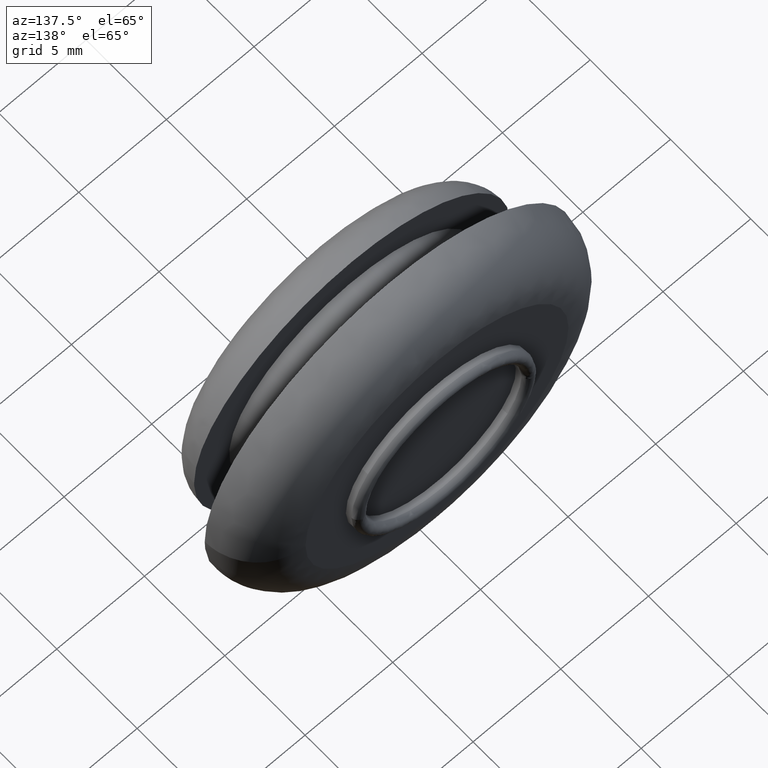
[diagram: clean part render]
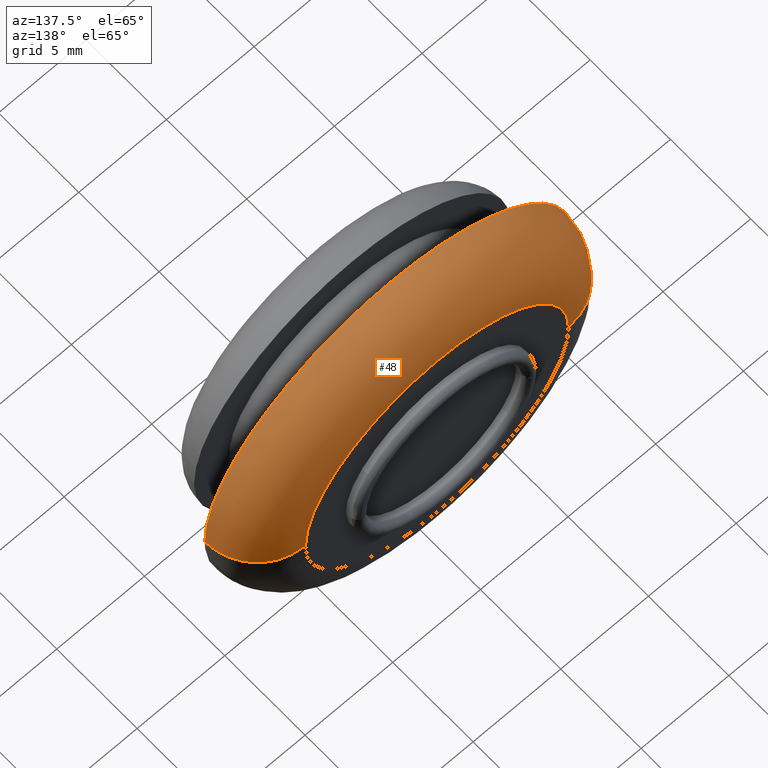
[diagram: same view with one face highlighted and labeled with its STEP entity id]
A machine part, auxiliary view. The second image highlights one B-rep face of the part: STEP entity #48.
In plain terms, the highlighted face is a freeform B-spline surface patch.
Its self-contained STEP definition (entity closure, byte-faithful):
#48=ADVANCED_FACE('',(#145),#144,.T.);
#144=( BOUNDED_SURFACE() B_SPLINE_SURFACE( 2,2,((#350,#351,#352,#353,#354),(#355,#356,#357,#358,#359),(#360,#361,#362,#363,#364),(#365,#366,#367,#368,#369),(#370,#371,#372,#373,#374)), .UNSPECIFIED.,.F.,.F.,.F.) B_SPLINE_SURFACE_WITH_KNOTS((3,2,3),(3,2,3),(-1.57079679760E+000,-1.04711989377E+000,2.32972274600E-004),(0.00000000000E+000,1.57079632679E+000,3.14159265359E+000), .UNSPECIFIED. ) GEOMETRIC_REPRESENTATION_ITEM() RATIONAL_B_SPLINE_SURFACE(((9.32993286230E-001,6.59725879495E-001,9.32993286230E-001,6.59725879495E-001,9.32993286230E-001),(9.32993225988E-001,6.59725836898E-001,9.32993225988E-001,6.59725836898E-001,9.32993225988E-001),(1.00000000000E+000,7.07106781187E-001,1.00000000000E+000,7.07106781187E-001,1.00000000000E+000),(8.65986572461E-001,6.12344977803E-001,8.65986572461E-001,6.12344977803E-001,8.65986572461E-001),(1.00000000000E+000,7.07106781187E-001,1.00000000000E+000,7.07106781187E-001,1.00000000000E+000))) REPRESENTATION_ITEM('') SURFACE() );
#145=FACE_OUTER_BOUND('',#375,.T.);
#350=CARTESIAN_POINT('',(-7.49999855439E+000,7.30000000000E+000,2.89862901081E-014));
#351=CARTESIAN_POINT('',(-7.49999855439E+000,7.30000000000E+000,7.49999855439E+000));
#352=CARTESIAN_POINT('',(-1.11662089636E-012,7.30000000000E+000,7.49999855439E+000));
#353=CARTESIAN_POINT('',(7.49999855439E+000,7.30000000000E+000,7.49999855439E+000));
#354=CARTESIAN_POINT('',(7.49999855439E+000,7.30000000000E+000,2.71493809314E-014));
#355=CARTESIAN_POINT('',(-8.30397175717E+000,7.30000038741E+000,2.90847546404E-014));
#356=CARTESIAN_POINT('',(-8.30397175717E+000,7.30000038741E+000,8.30397175716E+000));
#357=CARTESIAN_POINT('',(-1.11652255357E-012,7.30000038741E+000,8.30397175716E+000));
#358=CARTESIAN_POINT('',(8.30397175716E+000,7.30000038741E+000,8.30397175716E+000));
#359=CARTESIAN_POINT('',(8.30397175716E+000,7.30000038741E+000,2.70509353252E-014));
#360=CARTESIAN_POINT('',(-9.00020175539E+000,6.89795971738E+000,1.93496271287E-014));
#361=CARTESIAN_POINT('',(-9.00020175539E+000,6.89795971738E+000,9.00020175539E+000));
#362=CARTESIAN_POINT('',(-9.99916003845E-013,6.89795971738E+000,9.00020175539E+000));
#363=CARTESIAN_POINT('',(9.00020175538E+000,6.89795971738E+000,9.00020175539E+000));
#364=CARTESIAN_POINT('',(9.00020175538E+000,6.89795971738E+000,1.71452862776E-014));
#365=CARTESIAN_POINT('',(-1.05004035108E+001,6.03166248736E+000,-1.62714120825E-015));
#366=CARTESIAN_POINT('',(-1.05004035108E+001,6.03166248736E+000,1.05004035108E+001));
#367=CARTESIAN_POINT('',(-7.48658012905E-013,6.03166248736E+000,1.05004035108E+001));
#368=CARTESIAN_POINT('',(1.05004035108E+001,6.03166248737E+000,1.05004035108E+001));
#369=CARTESIAN_POINT('',(1.05004035108E+001,6.03166248737E+000,-4.19891337965E-015));
#370=CARTESIAN_POINT('',(-1.04999999186E+001,4.29930108318E+000,-4.39424659217E-014));
#371=CARTESIAN_POINT('',(-1.04999999186E+001,4.29930108318E+000,1.04999999186E+001));
#372=CARTESIAN_POINT('',(-2.46577057094E-013,4.29930108318E+000,1.04999999186E+001));
#373=CARTESIAN_POINT('',(1.04999999186E+001,4.29930108318E+000,1.04999999186E+001));
#374=CARTESIAN_POINT('',(1.04999999186E+001,4.29930108318E+000,-4.65141392447E-014));
#375=EDGE_LOOP('',(#542,#543,#544,#545,#546,#547));
#542=ORIENTED_EDGE('',*,*,#657,.T.);
#543=ORIENTED_EDGE('',*,*,#663,.T.);
#544=ORIENTED_EDGE('',*,*,#651,.F.);
#545=ORIENTED_EDGE('',*,*,#650,.F.);
#546=ORIENTED_EDGE('',*,*,#649,.F.);
#547=ORIENTED_EDGE('',*,*,#664,.F.);
#649=EDGE_CURVE('',#847,#854,#855,.T.);
#650=EDGE_CURVE('',#854,#861,#862,.T.);
#651=EDGE_CURVE('',#861,#868,#869,.T.);
#657=EDGE_CURVE('',#910,#902,#911,.T.);
#663=EDGE_CURVE('',#902,#868,#949,.T.);
#664=EDGE_CURVE('',#910,#847,#955,.T.);
#847=VERTEX_POINT('',#1251);
#854=VERTEX_POINT('',#1255);
#855=(BOUNDED_CURVE() B_SPLINE_CURVE(2,(#1256,#1257,#1258),.UNSPECIFIED.,.F.,.F.) B_SPLINE_CURVE_WITH_KNOTS((3,3),(6.50978089366E-004,1.00000000000E+000),.UNSPECIFIED.) CURVE() GEOMETRIC_REPRESENTATION_ITEM() RATIONAL_B_SPLINE_CURVE((1.00000000000E+000,7.06780917395E-001,1.00000000000E+000)) REPRESENTATION_ITEM('') );
#861=VERTEX_POINT('',#1259);
#862=CIRCLE('',#1263,1.05000000000E+001);
#868=VERTEX_POINT('',#1264);
#869=CIRCLE('',#1268,1.05000000000E+001);
#902=VERTEX_POINT('',#1288);
#910=VERTEX_POINT('',#1294);
#911=CIRCLE('',#1298,7.50000000014E+000);
#949=(BOUNDED_CURVE() B_SPLINE_CURVE(2,(#1323,#1324,#1325,#1326,#1327),.UNSPECIFIED.,.F.,.F.) B_SPLINE_CURVE_WITH_KNOTS((3,2,3),(-1.57079631639E+000,-1.04711989377E+000,-1.04413764058E-005),.UNSPECIFIED.) CURVE() GEOMETRIC_REPRESENTATION_ITEM() RATIONAL_B_SPLINE_CURVE((9.32993286230E-001,9.32993287562E-001,1.00000000000E+000,8.66017718313E-001,9.99937722773E-001)) REPRESENTATION_ITEM('') );
#955=(BOUNDED_CURVE() B_SPLINE_CURVE(2,(#1328,#1329,#1330,#1331,#1332),.UNSPECIFIED.,.F.,.F.) B_SPLINE_CURVE_WITH_KNOTS((3,2,3),(-1.57079657884E+000,-1.04711989377E+000,2.32972274600E-004),.UNSPECIFIED.) CURVE() GEOMETRIC_REPRESENTATION_ITEM() RATIONAL_B_SPLINE_CURVE((9.32993286230E-001,9.32993253980E-001,1.00000000000E+000,8.65986572461E-001,1.00000000000E+000)) REPRESENTATION_ITEM('') );
#1251=CARTESIAN_POINT('',(1.04999999186E+001,4.29930108318E+000,-4.65141392447E-014));
#1255=CARTESIAN_POINT('',(0.00000000000E+000,4.30000000000E+000,1.05000000000E+001));
#1256=CARTESIAN_POINT('',(1.04999999186E+001,4.29930108318E+000,-4.65141392447E-014));
#1257=CARTESIAN_POINT('',(1.05096798928E+001,4.29999924701E+000,1.05000000000E+001));
#1258=CARTESIAN_POINT('',(3.99333344170E-015,4.30000000000E+000,1.05000000000E+001));
#1259=CARTESIAN_POINT('',(-1.04991710529E+001,4.29999841998E+000,1.31936358787E-001));
#1260=CARTESIAN_POINT('',(5.71986902287E-013,4.29999920999E+000,2.67252886488E-012));
#1261=DIRECTION('',(7.61904558837E-008,-1.00000000000E+000,7.52390347274E-008));
#1262=DIRECTION('',(5.44749430750E-014,-7.52390347274E-008,-1.00000000000E+000));
#1263=AXIS2_PLACEMENT_3D('',#1260,#1261,#1262);
#1264=CARTESIAN_POINT('',(-1.05000000000E+001,4.29999842985E+000,-2.55370822547E-008));
#1265=CARTESIAN_POINT('',(5.08038056068E-013,4.29999920999E+000,-2.66897615120E-012));
#1266=DIRECTION('',(7.42994944509E-008,-1.00000000000E+000,-7.52390202351E-008));
#1267=DIRECTION('',(9.99921052653E-001,7.52390346428E-008,-1.25653675038E-002));
#1268=AXIS2_PLACEMENT_3D('',#1265,#1266,#1267);
#1288=CARTESIAN_POINT('',(-7.50000000020E+000,7.30000000000E+000,-1.13696944212E-007));
#1294=CARTESIAN_POINT('',(7.50000000008E+000,7.30000000000E+000,3.77558069178E-008));
#1295=CARTESIAN_POINT('',(-6.02256022830E-011,7.30000000000E+000,-1.37492683905E-010));
#1296=DIRECTION('',(6.05720519169E-016,-1.00000000000E+000,6.96686584546E-015));
#1297=DIRECTION('',(8.03000721472E-012,-6.96686584545E-015,-1.00000000000E+000));
#1298=AXIS2_PLACEMENT_3D('',#1295,#1296,#1297);
#1323=CARTESIAN_POINT('',(-7.50000003195E+000,7.30000000000E+000,2.89862902890E-014));
#1324=CARTESIAN_POINT('',(-8.30397244289E+000,7.29999999143E+000,2.90847450522E-014));
#1325=CARTESIAN_POINT('',(-9.00020175539E+000,6.89795971738E+000,1.93496271287E-014));
#1326=CARTESIAN_POINT('',(-1.05000009098E+001,6.03189497082E+000,-1.62151178750E-015));
#1327=CARTESIAN_POINT('',(-1.05000000000E+001,4.29999842400E+000,-4.39254324169E-014));
#1328=CARTESIAN_POINT('',(7.49999922610E+000,7.30000000000E+000,2.71493808492E-014));
#1329=CARTESIAN_POINT('',(8.30397206890E+000,7.30000020740E+000,2.70509308900E-014));
#1330=CARTESIAN_POINT('',(9.00020175538E+000,6.89795971738E+000,1.71452862776E-014));
#1331=CARTESIAN_POINT('',(1.05004035108E+001,6.03166248737E+000,-4.19891337965E-015));
#1332=CARTESIAN_POINT('',(1.04999999186E+001,4.29930108318E+000,-4.65141392447E-014));